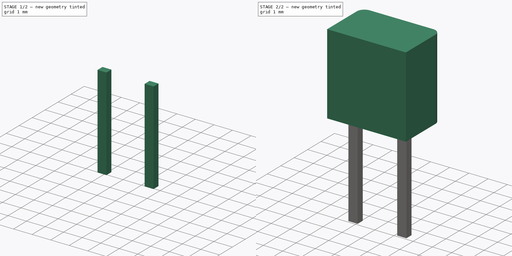
[diagram: build sequence overview — one tinted view per stage of 2, left to right]
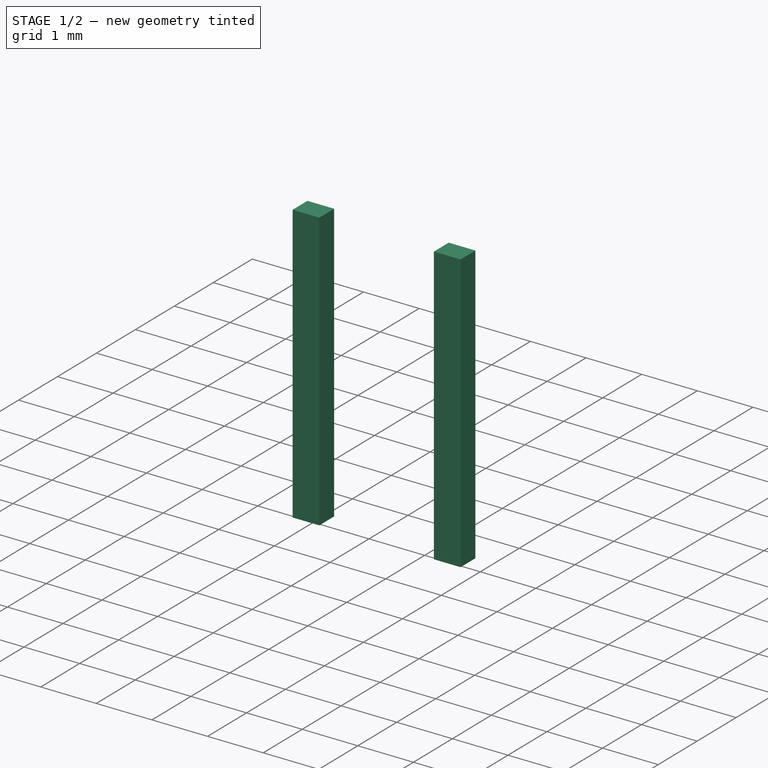
[diagram: stage 1 of 2 — iso view after this stage's code; geometry added in this stage tinted green]
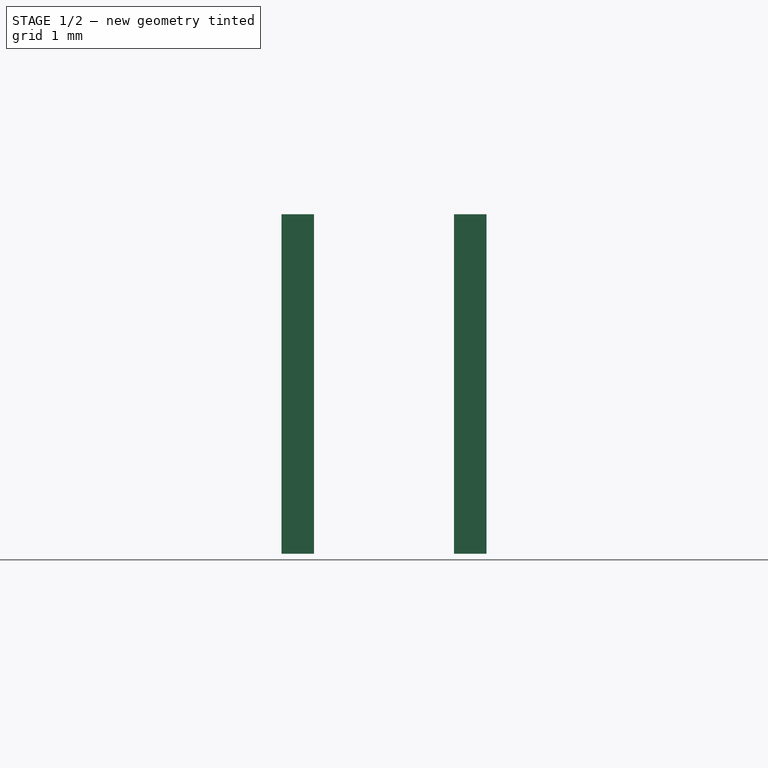
[diagram: stage 1 of 2 — front view after this stage's code; geometry added in this stage tinted green]
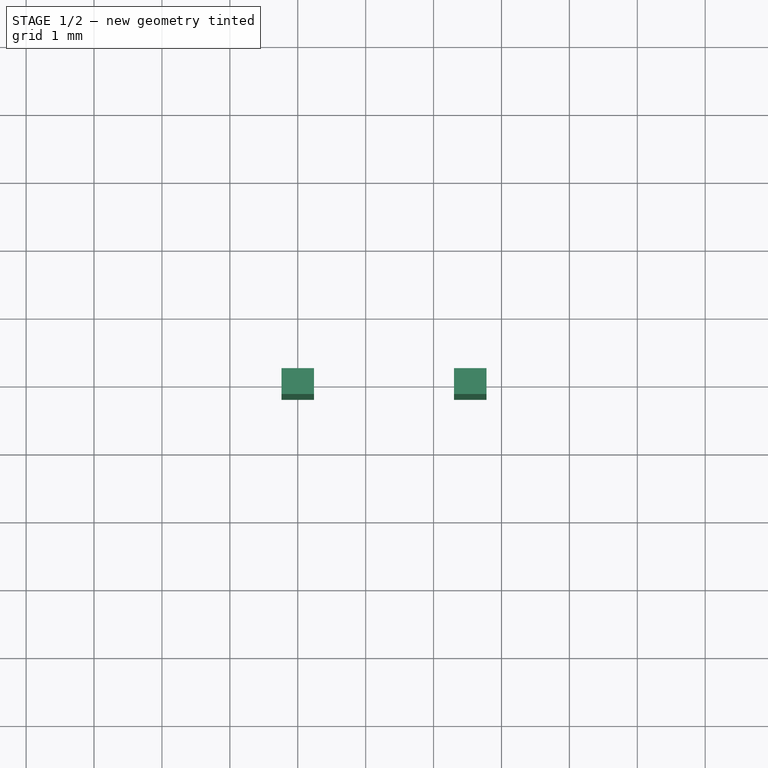
[diagram: stage 1 of 2 — top view after this stage's code; geometry added in this stage tinted green]
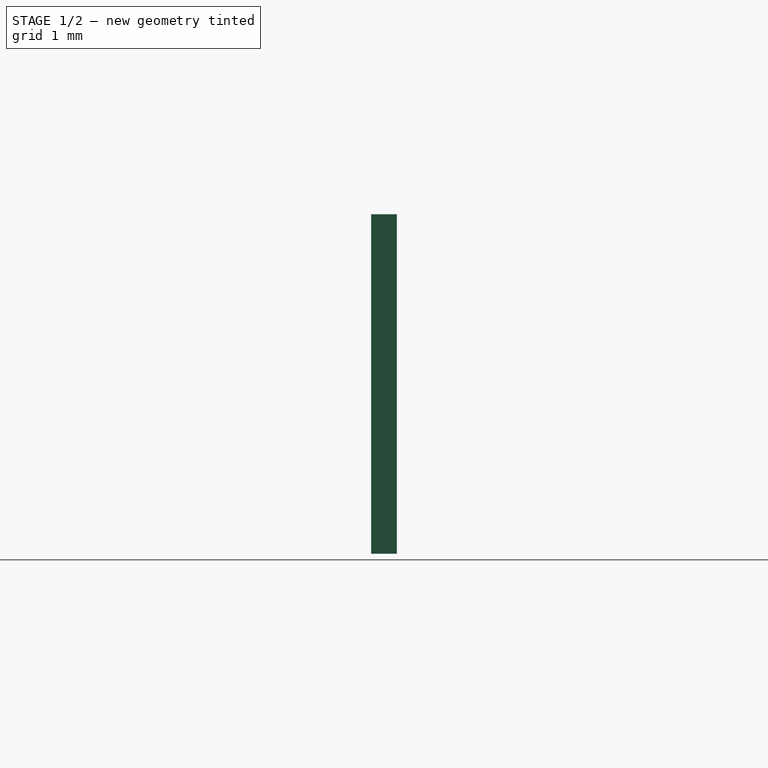
[diagram: stage 1 of 2 — right view after this stage's code; geometry added in this stage tinted green]
FCSTD DOCUMENT  (FreeCAD 0.16R6712 (Git))
Label: Heraeus_TO-92-2
License: All rights reserved
LicenseURL: http://en.wikipedia.org/wiki/All_rights_reserved
objects: Sketcher::SketchObject×2, PartDesign::Pad×2, Part::Feature×1
note: 7 computed .brp shape members not serialized (recipe doc carries the construction recipe); baked Part::Feature solids carry a one-line shape summary decoded from their .brp

FEATURE [Sketcher::SketchObject] Sketch001
  Placement = pos=(0,0,2.5) rot=(0,0,1;0rad)
  sketch-geometry (9):
    g0: LineSegment StartX=-0.24 StartY=0.19 StartZ=0 EndX=0.24 EndY=0.19 EndZ=0
    g1: LineSegment StartX=0.24 StartY=0.19 StartZ=0 EndX=0.24 EndY=-0.19 EndZ=0
    g2: LineSegment StartX=0.24 StartY=-0.19 StartZ=0 EndX=-0.24 EndY=-0.19 EndZ=0
    g3: LineSegment StartX=-0.24 StartY=-0.19 StartZ=0 EndX=-0.24 EndY=0.19 EndZ=0
    g4: LineSegment [constr] StartX=-0.24 StartY=0 StartZ=0 EndX=0.24 EndY=0 EndZ=0
    g5: LineSegment StartX=2.3 StartY=0.19 StartZ=0 EndX=2.78 EndY=0.19 EndZ=0
    g6: LineSegment StartX=2.78 StartY=0.19 StartZ=0 EndX=2.78 EndY=-0.19 EndZ=0
    g7: LineSegment StartX=2.78 StartY=-0.19 StartZ=0 EndX=2.3 EndY=-0.19 EndZ=0
    g8: LineSegment StartX=2.3 StartY=-0.19 StartZ=0 EndX=2.3 EndY=0.19 EndZ=0
  constraints (28):
    c: Coincident(g0,g1)
    c: Coincident(g1,g2)
    c: Coincident(g2,g3)
    c: Coincident(g3,g0)
    c: Horizontal(g0)
    c: Horizontal(g2)
    c: Vertical(g1)
    c: Vertical(g3)
    c: DistanceX(g0,g0) = 0.48
    c: DistanceY(g1,g1) = 0.38
    c: PointOnObject(g4,g3)
    c: PointOnObject(g4,g1)
    c: Horizontal(g4)
    c: PointOnObject(g-1,g4)
    c: Symmetric(g1,g1,g4)
    c: Symmetric(g4,g4,g-1)
    c: Coincident(g5,g6)
    c: Coincident(g6,g7)
    c: Coincident(g7,g8)
    c: Coincident(g8,g5)
    c: Horizontal(g5)
    c: Horizontal(g7)
    c: Vertical(g6)
    c: Vertical(g8)
    c: Equal(g5,g0)
    c: Equal(g3,g8)
    c: DistanceY(g5,g0) = 0
    c: DistanceX(g0,g5) = 2.54
FEATURE [PartDesign::Pad] Pad001
  Length = 5
  Length2 = 100
  Placement = pos=(0,0,2.5) rot=(0,0,1;0rad)
  Reversed = true
  Sketch = -> Sketch001
  Type = 0
FEATURE [Part::Feature] Shape  label="Heraeus_TO-92-2"
  shape: bbox 4.1 x 2.6 x 9.2 mm, 18 faces (baked)
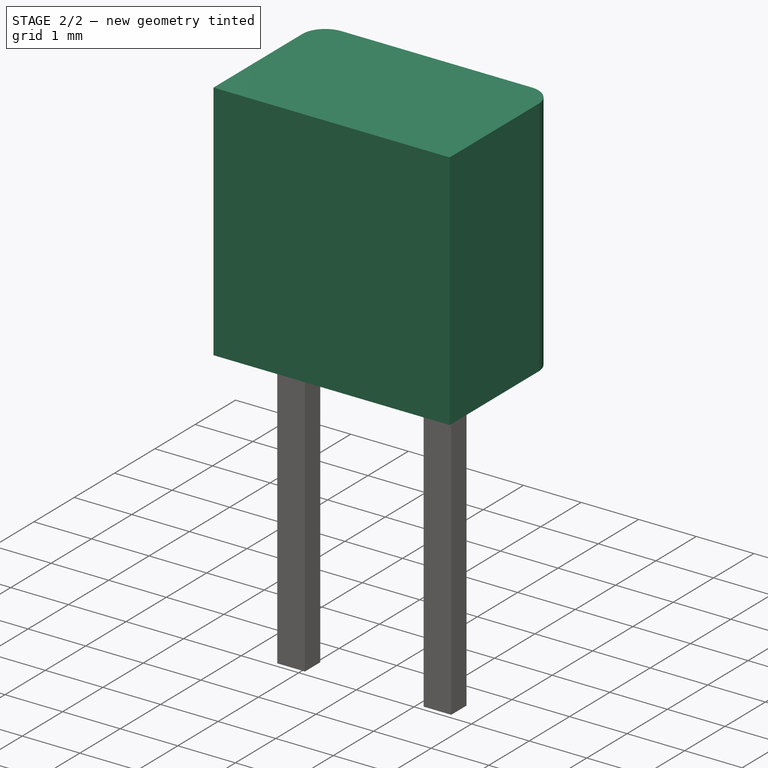
[diagram: stage 2 of 2 — iso view after this stage's code; geometry added in this stage tinted green]
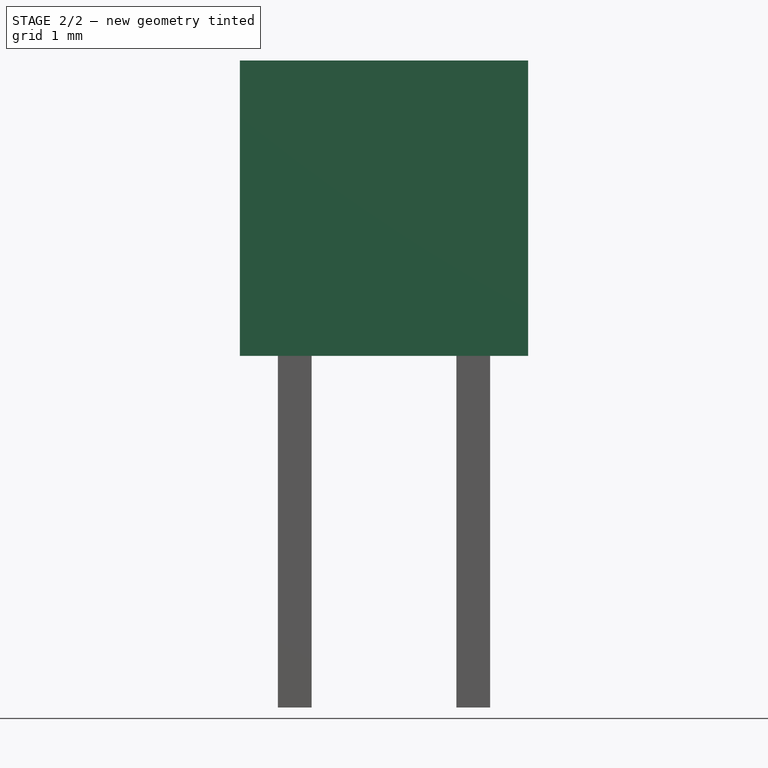
[diagram: stage 2 of 2 — front view after this stage's code; geometry added in this stage tinted green]
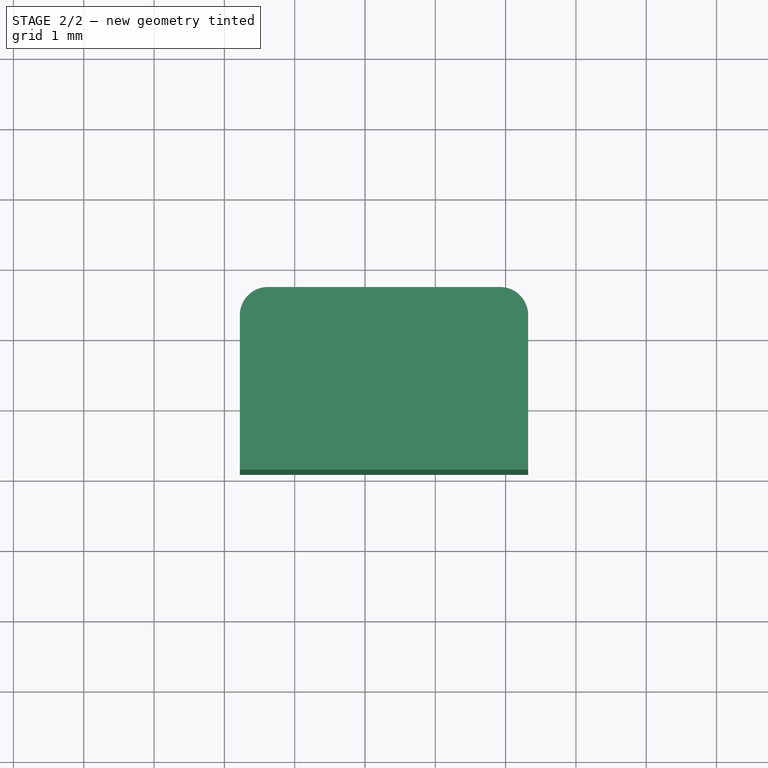
[diagram: stage 2 of 2 — top view after this stage's code; geometry added in this stage tinted green]
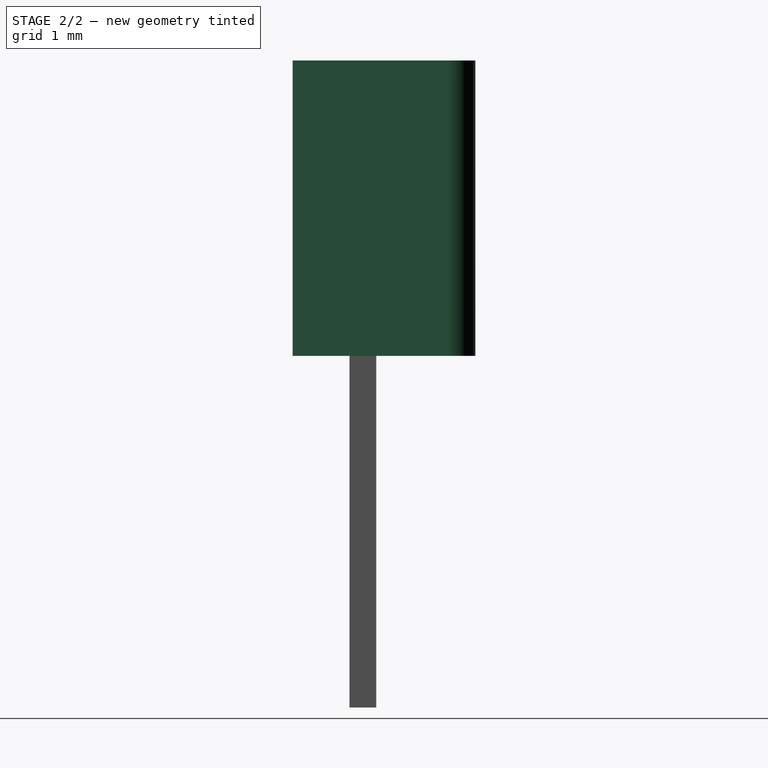
[diagram: stage 2 of 2 — right view after this stage's code; geometry added in this stage tinted green]
FEATURE [Sketcher::SketchObject] Sketch
  Placement = pos=(0,0,2.5) rot=(0,0,1;0rad)
  sketch-geometry (8):
    g0: LineSegment [constr] StartX=0 StartY=0 StartZ=0 EndX=1.27 EndY=0 EndZ=0
    g1: LineSegment StartX=-0.78 StartY=-1 StartZ=0 EndX=3.32 EndY=-1 EndZ=0
    g2: LineSegment StartX=-0.78 StartY=-1 StartZ=0 EndX=-0.78 EndY=1.2 EndZ=0
    g3: LineSegment StartX=-0.38 StartY=1.6 StartZ=0 EndX=2.92 EndY=1.6 EndZ=0
    g4: LineSegment StartX=3.32 StartY=-1 StartZ=0 EndX=3.32 EndY=1.2 EndZ=0
    g5: LineSegment [constr] StartX=3.32 StartY=0 StartZ=0 EndX=-0.78 EndY=0 EndZ=0
    g6: ArcOfCircle CenterX=-0.38 CenterY=1.2 CenterZ=0 NormalX=0 NormalY=0 NormalZ=1 Radius=0.4 StartAngle=1.5708 EndAngle=3.14159
    g7: ArcOfCircle CenterX=2.92 CenterY=1.2 CenterZ=0 NormalX=0 NormalY=0 NormalZ=1 Radius=0.4 StartAngle=0 EndAngle=1.5708
  constraints (23):
    c: Coincident(g0,g-1)
    c: Horizontal(g0)
    c: DistanceX(g0,g0) = 1.27
    c: Horizontal(g1)
    c: DistanceY(g1,g0) = 1
    c: Coincident(g2,g1)
    c: Vertical(g2)
    c: Horizontal(g3)
    c: Coincident(g4,g1)
    c: Vertical(g4)
    c: DistanceX(g1,g1) = 4.1
    c: PointOnObject(g5,g4)
    c: PointOnObject(g5,g2)
    c: Horizontal(g5)
    c: PointOnObject(g0,g5)
    c: Symmetric(g5,g5,g0)
    c: Tangent(g2,g6) = 1.5708
    c: Tangent(g3,g6) = 1.5708
    c: Tangent(g4,g7) = -1.5708
    c: Tangent(g3,g7) = 1.5708
    c: Equal(g7,g6)
    c: Radius(g7) = 0.4
    c: DistanceY(g1,g3) = 2.6
FEATURE [PartDesign::Pad] Pad
  Length = 4.2
  Length2 = 100
  Placement = pos=(0,0,2.5) rot=(0,0,1;0rad)
  Sketch = -> Sketch
  Type = 0
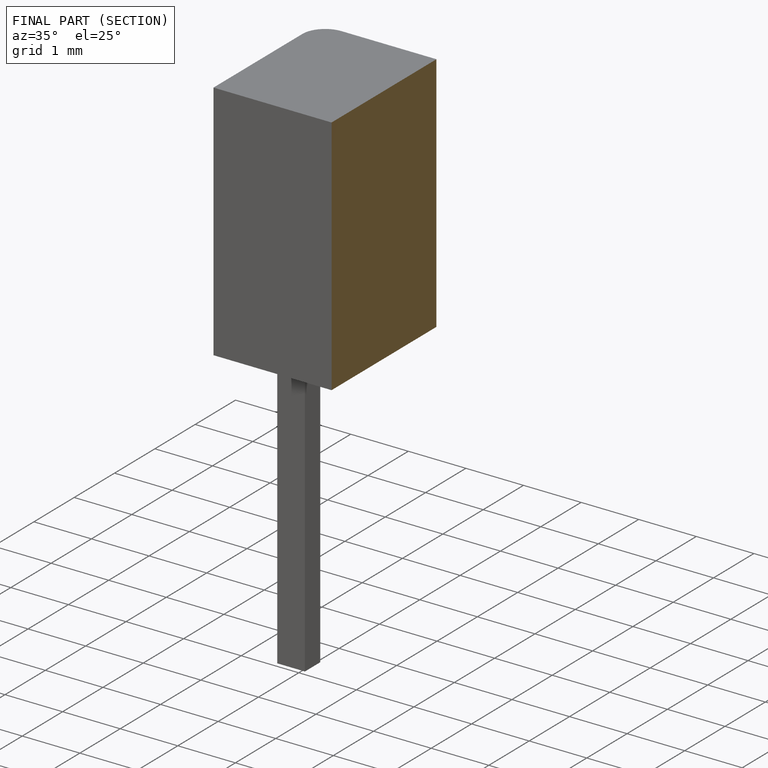
[diagram: finished part — half-section view (interior)]
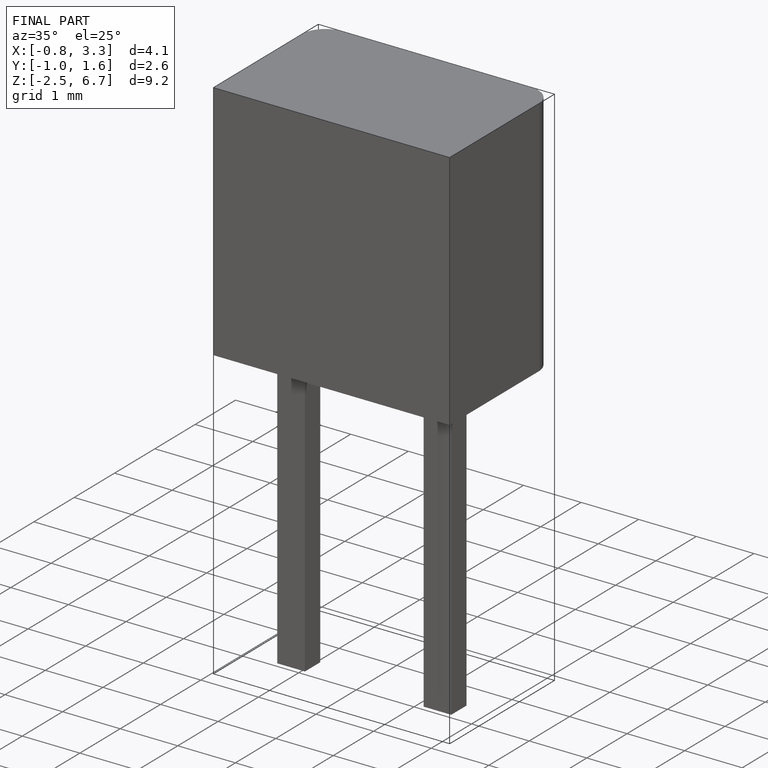
[diagram: finished part — iso view with bounding-box wireframe]
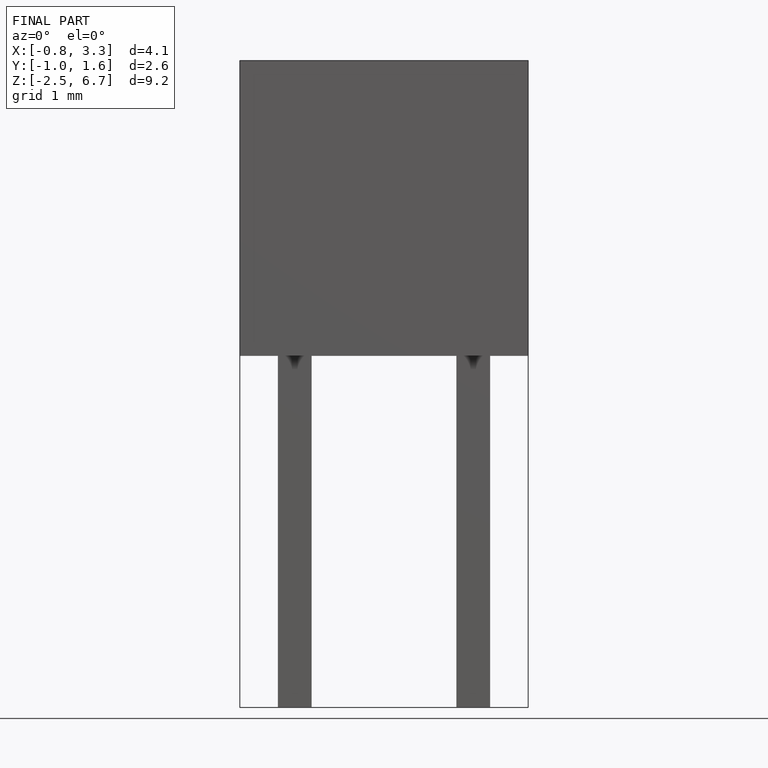
[diagram: finished part — front view with bounding-box wireframe]
